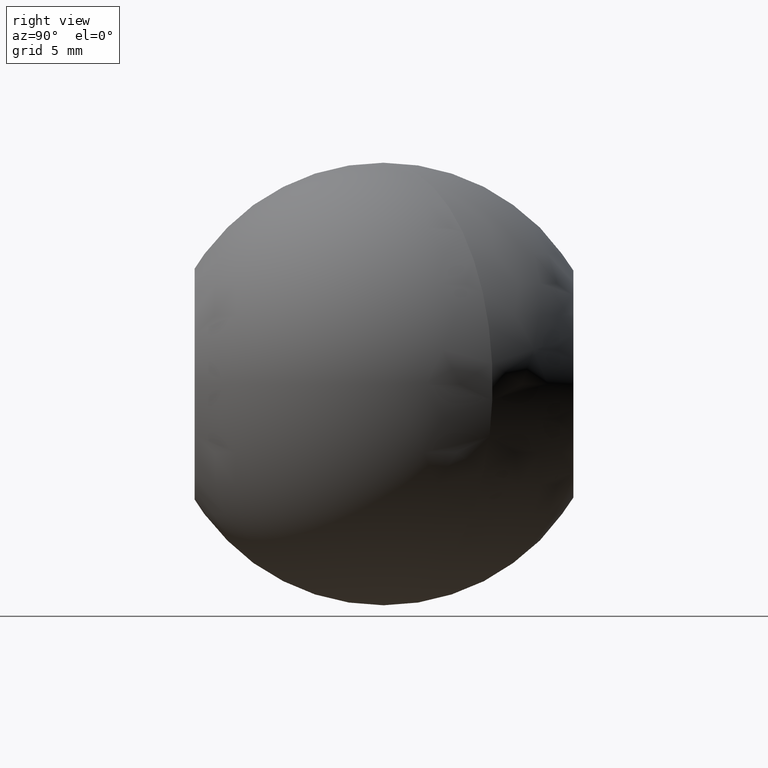
[diagram: clean part render]
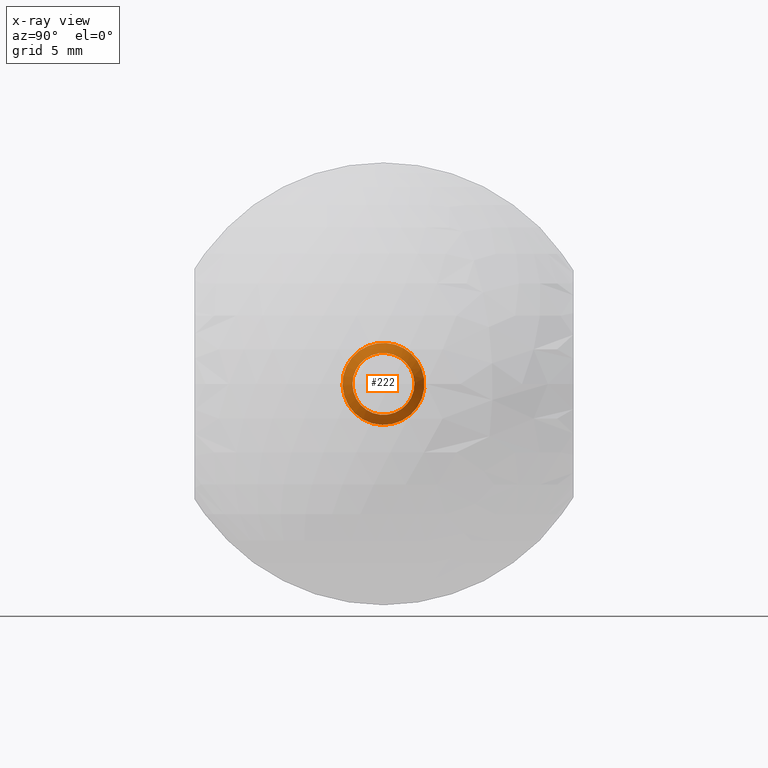
[diagram: x-ray — body ghosted, one internal face saturated and labeled with its STEP entity id]
A machine part, right view, then the same camera in x-ray: the body is ghosted and one INTERNAL B-rep face — a face not visible from any outside direction — is saturated and labeled: STEP entity #222.
In plain terms, the highlighted conical surface has half-angle 45 deg.
Its self-contained STEP definition (entity closure, byte-faithful):
#14 = DIRECTION ( 'NONE',  ( 0.000000000000000000, 1.000000000000000000, 0.000000000000000000 ) ) ;
#48 = CIRCLE ( 'NONE', #279, 2.316732705927438740 ) ;
#165 = VERTEX_POINT ( 'NONE', #892 ) ;
#186 = EDGE_LOOP ( 'NONE', ( #775 ) ) ;
#191 = CARTESIAN_POINT ( 'NONE',  ( 4.433267294072569698, 2.316732705927438740, 0.000000000000000000 ) ) ;
#222 = ADVANCED_FACE ( 'NONE', ( #439, #1191 ), #711, .T. ) ;
#271 = DIRECTION ( 'NONE',  ( -1.000000000000000000, -0.000000000000000000, -0.000000000000000000 ) ) ;
#279 = AXIS2_PLACEMENT_3D ( 'NONE', #1003, #1114, #14 ) ;
#288 = CIRCLE ( 'NONE', #295, 1.750000000000000000 ) ;
#295 = AXIS2_PLACEMENT_3D ( 'NONE', #773, #271, #1184 ) ;
#369 = EDGE_CURVE ( 'NONE', #596, #596, #48, .T. ) ;
#383 = CARTESIAN_POINT ( 'NONE',  ( 4.250000000000010658, 0.000000000000000000, 0.000000000000000000 ) ) ;
#397 = EDGE_LOOP ( 'NONE', ( #1283 ) ) ;
#439 = FACE_OUTER_BOUND ( 'NONE', #397, .T. ) ;
#497 = DIRECTION ( 'NONE',  ( 0.000000000000000000, 0.000000000000000000, 1.000000000000000000 ) ) ;
#596 = VERTEX_POINT ( 'NONE', #191 ) ;
#711 = CONICAL_SURFACE ( 'NONE', #1231, 2.500000000000000000, 0.7853981633974548293 ) ;
#773 = CARTESIAN_POINT ( 'NONE',  ( 5.000000000000000888, 0.000000000000000000, 0.000000000000000000 ) ) ;
#775 = ORIENTED_EDGE ( 'NONE', *, *, #1069, .T. ) ;
#892 = CARTESIAN_POINT ( 'NONE',  ( 5.000000000000000888, 0.000000000000000000, 1.750000000000000000 ) ) ;
#1003 = CARTESIAN_POINT ( 'NONE',  ( 4.433267294072569698, 0.000000000000000000, 0.000000000000000000 ) ) ;
#1069 = EDGE_CURVE ( 'NONE', #165, #165, #288, .T. ) ;
#1078 = DIRECTION ( 'NONE',  ( -1.000000000000000000, -0.000000000000000000, -0.000000000000000000 ) ) ;
#1114 = DIRECTION ( 'NONE',  ( -1.000000000000000000, -1.224606353822377258E-16, -0.000000000000000000 ) ) ;
#1184 = DIRECTION ( 'NONE',  ( 0.000000000000000000, 0.000000000000000000, 1.000000000000000000 ) ) ;
#1191 = FACE_BOUND ( 'NONE', #186, .T. ) ;
#1231 = AXIS2_PLACEMENT_3D ( 'NONE', #383, #1078, #497 ) ;
#1283 = ORIENTED_EDGE ( 'NONE', *, *, #369, .F. ) ;